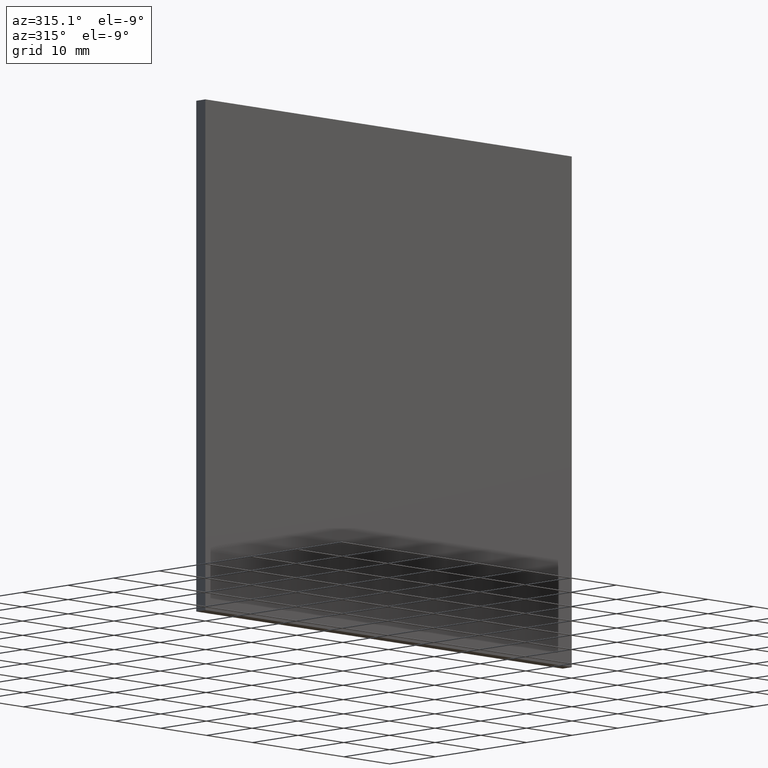
[diagram: clean part render]
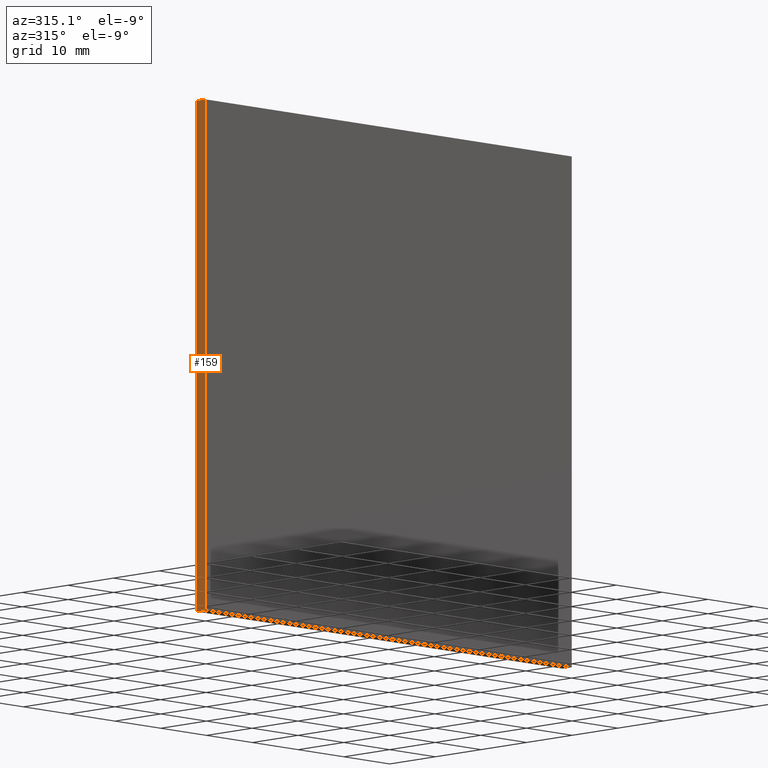
[diagram: same view with one face highlighted and labeled with its STEP entity id]
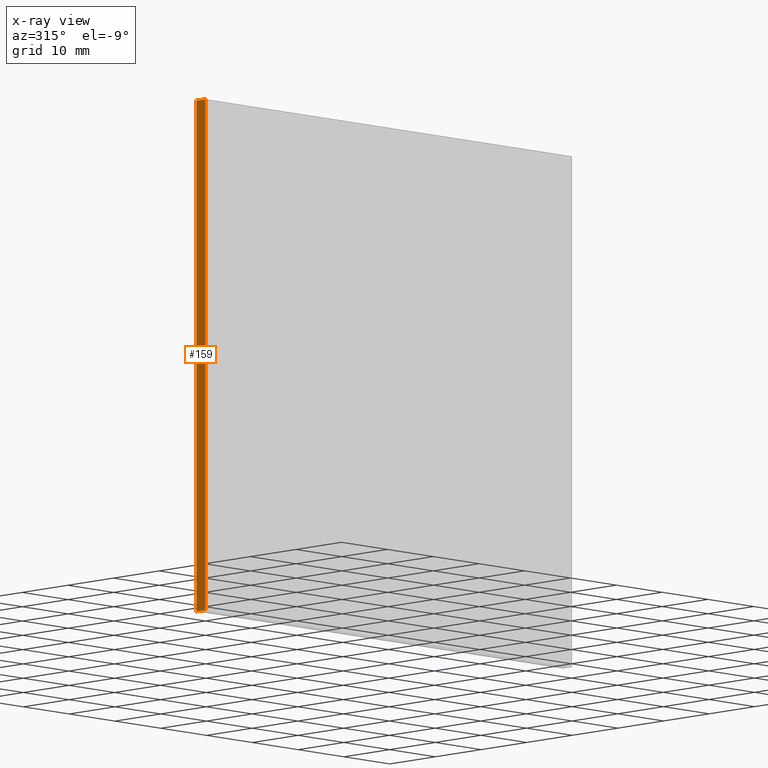
[diagram: x-ray of the same camera — body ghosted, the highlighted face saturated]
A machine part, auxiliary view. The second image highlights one B-rep face of the part: STEP entity #159.
The next image is the same camera in x-ray: the body ghosted, the highlighted face saturated — about 0% of this face is hidden behind the body in this view.
In plain terms, the highlighted planar face has unit normal (1, 0, -0).
Its self-contained STEP definition (entity closure, byte-faithful):
#6 = DIRECTION ( 'NONE',  ( -0.0000000000000000000, -1.000000000000000000, -0.0000000000000000000 ) ) ;
#8 = EDGE_CURVE ( 'NONE', #40, #31, #56, .T. ) ;
#16 = DIRECTION ( 'NONE',  ( -0.0000000000000000000, -1.000000000000000000, -0.0000000000000000000 ) ) ;
#17 = VECTOR ( 'NONE', #6, 1000.000000000000000 ) ;
#21 = ORIENTED_EDGE ( 'NONE', *, *, #53, .T. ) ;
#27 = VECTOR ( 'NONE', #98, 1000.000000000000000 ) ;
#29 = ORIENTED_EDGE ( 'NONE', *, *, #147, .T. ) ;
#31 = VERTEX_POINT ( 'NONE', #165 ) ;
#35 = LINE ( 'NONE', #156, #27 ) ;
#40 = VERTEX_POINT ( 'NONE', #136 ) ;
#45 = CARTESIAN_POINT ( 'NONE',  ( -40.00000000000001400, 0.0000000000000000000, -40.00000000000000700 ) ) ;
#53 = EDGE_CURVE ( 'NONE', #148, #31, #93, .T. ) ;
#56 = LINE ( 'NONE', #127, #172 ) ;
#78 = EDGE_LOOP ( 'NONE', ( #21, #192, #190, #29 ) ) ;
#82 = DIRECTION ( 'NONE',  ( 8.673617379884035500E-017, 0.0000000000000000000, 1.000000000000000000 ) ) ;
#91 = AXIS2_PLACEMENT_3D ( 'NONE', #122, #157, #111 ) ;
#93 = LINE ( 'NONE', #137, #134 ) ;
#98 = DIRECTION ( 'NONE',  ( 8.673617379884035500E-017, 0.0000000000000000000, 1.000000000000000000 ) ) ;
#110 = EDGE_CURVE ( 'NONE', #120, #40, #35, .T. ) ;
#111 = DIRECTION ( 'NONE',  ( -8.673617379884035500E-017, 0.0000000000000000000, -1.000000000000000000 ) ) ;
#120 = VERTEX_POINT ( 'NONE', #194 ) ;
#122 = CARTESIAN_POINT ( 'NONE',  ( -40.00000000000001400, 2.000000000000000000, -40.00000000000000700 ) ) ;
#124 = PLANE ( 'NONE',  #91 ) ;
#127 = CARTESIAN_POINT ( 'NONE',  ( -40.00000000000000700, 2.000000000000000000, 39.99999999999999300 ) ) ;
#134 = VECTOR ( 'NONE', #82, 1000.000000000000000 ) ;
#135 = CARTESIAN_POINT ( 'NONE',  ( -40.00000000000001400, 2.000000000000000000, -40.00000000000000700 ) ) ;
#136 = CARTESIAN_POINT ( 'NONE',  ( -40.00000000000000700, 2.000000000000000000, 39.99999999999999300 ) ) ;
#137 = CARTESIAN_POINT ( 'NONE',  ( -40.00000000000001400, 0.0000000000000000000, -40.00000000000000700 ) ) ;
#143 = LINE ( 'NONE', #135, #17 ) ;
#147 = EDGE_CURVE ( 'NONE', #120, #148, #143, .T. ) ;
#148 = VERTEX_POINT ( 'NONE', #45 ) ;
#156 = CARTESIAN_POINT ( 'NONE',  ( -40.00000000000001400, 2.000000000000000000, -40.00000000000000700 ) ) ;
#157 = DIRECTION ( 'NONE',  ( 1.000000000000000000, 0.0000000000000000000, -8.673617379884035500E-017 ) ) ;
#159 = ADVANCED_FACE ( 'NONE', ( #173 ), #124, .F. ) ;
#165 = CARTESIAN_POINT ( 'NONE',  ( -40.00000000000000700, 0.0000000000000000000, 39.99999999999999300 ) ) ;
#172 = VECTOR ( 'NONE', #16, 1000.000000000000000 ) ;
#173 = FACE_OUTER_BOUND ( 'NONE', #78, .T. ) ;
#190 = ORIENTED_EDGE ( 'NONE', *, *, #110, .F. ) ;
#192 = ORIENTED_EDGE ( 'NONE', *, *, #8, .F. ) ;
#194 = CARTESIAN_POINT ( 'NONE',  ( -40.00000000000001400, 2.000000000000000000, -40.00000000000000700 ) ) ;